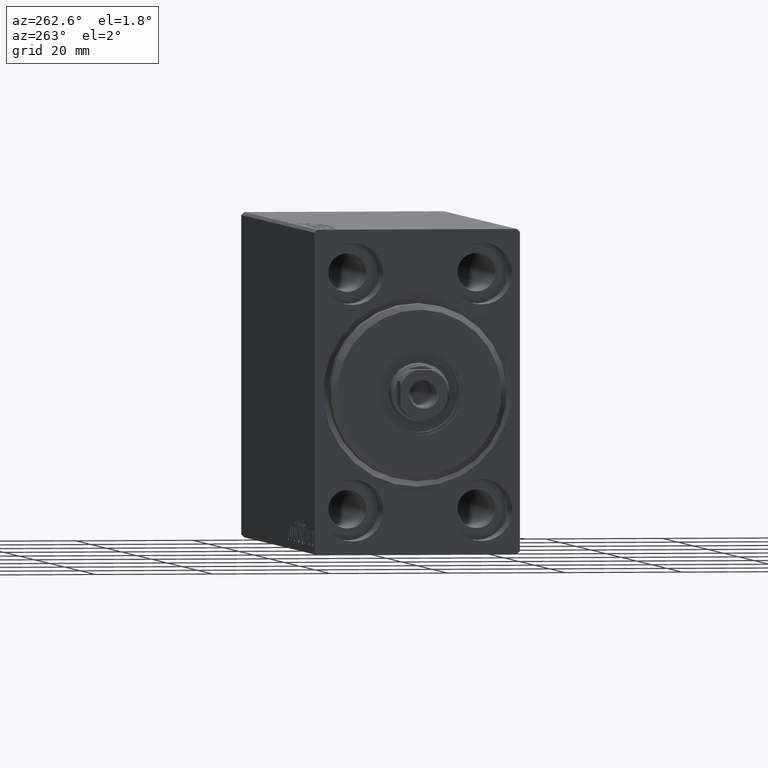
[diagram: clean part render]
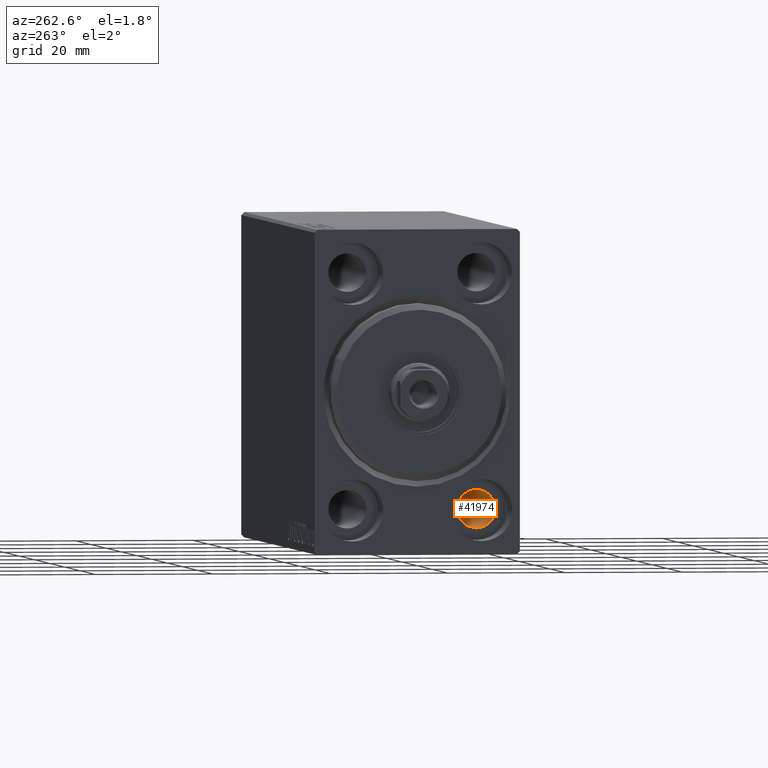
[diagram: same view with one face highlighted and labeled with its STEP entity id]
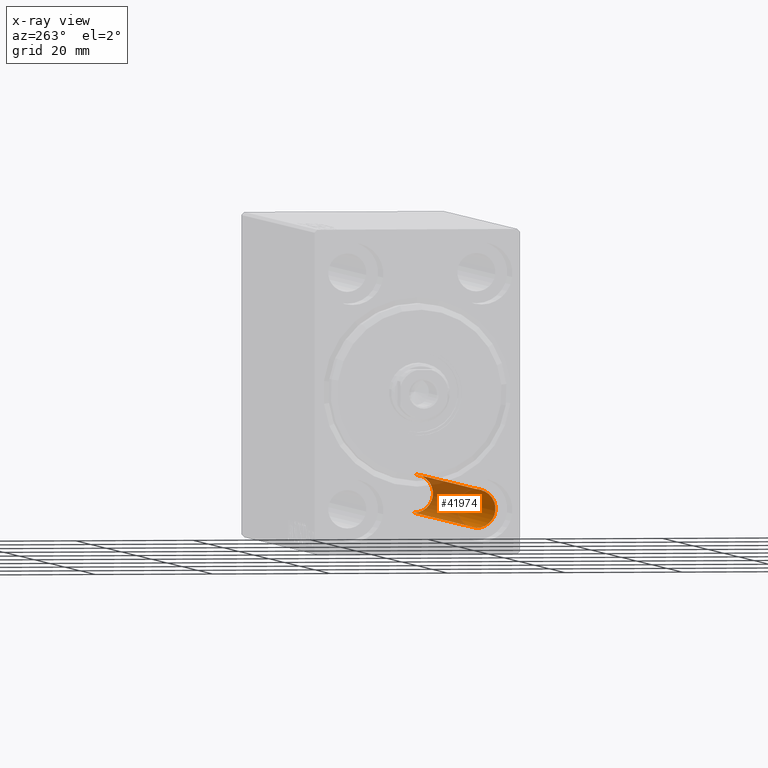
[diagram: x-ray of the same camera — body ghosted, the highlighted face saturated]
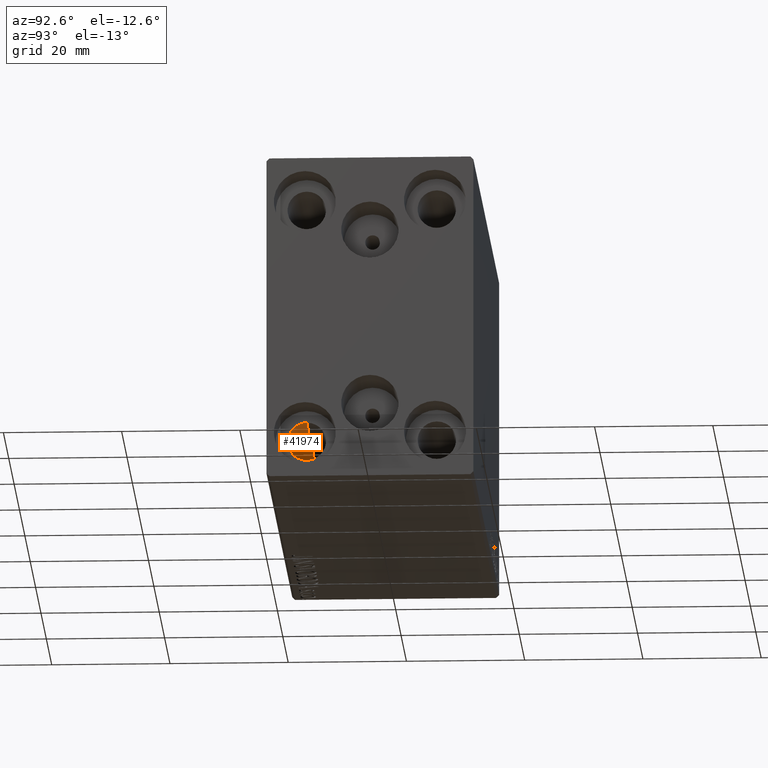
[diagram: same view with one face highlighted and labeled with its STEP entity id]
A machine part, auxiliary view. The second image highlights one B-rep face of the part: STEP entity #41974.
The next image is the same camera in x-ray: the body ghosted, the highlighted face saturated — about 53% of this face is hidden behind the body in this view.
A second angle (auxiliary view) of the same face is appended — the face is thin or edge-on in the first view.
In plain terms, the highlighted cylindrical surface (edge-blend (fillet) strip) has radius 3.25 mm, axis along (-1, -0, -0).
Its self-contained STEP definition (entity closure, byte-faithful):
#41 = VECTOR ( 'NONE', #42005, 1000.000000000000000 ) ;
#198 = LINE ( 'NONE', #39945, #33790 ) ;
#734 = EDGE_CURVE ( 'NONE', #19073, #11145, #4718, .T. ) ;
#3960 = VERTEX_POINT ( 'NONE', #38295 ) ;
#4718 = LINE ( 'NONE', #24899, #41 ) ;
#4857 = EDGE_CURVE ( 'NONE', #19073, #3960, #17114, .T. ) ;
#7310 = CARTESIAN_POINT ( 'NONE',  ( 89.00000000000000000, -11.00000000000000355, -23.25000000000000000 ) ) ;
#7547 = EDGE_CURVE ( 'NONE', #3960, #16487, #198, .T. ) ;
#11145 = VERTEX_POINT ( 'NONE', #14774 ) ;
#11491 = DIRECTION ( 'NONE',  ( -1.000000000000000000, -0.000000000000000000, -0.000000000000000000 ) ) ;
#12500 = CYLINDRICAL_SURFACE ( 'NONE', #28374, 3.249999999999999556 ) ;
#13094 = ORIENTED_EDGE ( 'NONE', *, *, #734, .T. ) ;
#14774 = CARTESIAN_POINT ( 'NONE',  ( 7.000000000000006217, -11.00000000000000355, -23.25000000000000000 ) ) ;
#16487 = VERTEX_POINT ( 'NONE', #21197 ) ;
#17114 = CIRCLE ( 'NONE', #34143, 3.249999999999999556 ) ;
#17640 = EDGE_LOOP ( 'NONE', ( #27500, #13094, #32945, #25846 ) ) ;
#19073 = VERTEX_POINT ( 'NONE', #7310 ) ;
#21197 = CARTESIAN_POINT ( 'NONE',  ( 7.000000000000006217, -11.00000000000000355, -16.75000000000000000 ) ) ;
#23161 = CARTESIAN_POINT ( 'NONE',  ( 96.00000000000000000, -11.00000000000000355, -20.00000000000000000 ) ) ;
#24899 = CARTESIAN_POINT ( 'NONE',  ( 96.00000000000000000, -11.00000000000000355, -23.25000000000000000 ) ) ;
#25025 = DIRECTION ( 'NONE',  ( 0.000000000000000000, 0.000000000000000000, -1.000000000000000000 ) ) ;
#25846 = ORIENTED_EDGE ( 'NONE', *, *, #7547, .F. ) ;
#26036 = DIRECTION ( 'NONE',  ( 0.000000000000000000, 0.000000000000000000, 1.000000000000000000 ) ) ;
#27500 = ORIENTED_EDGE ( 'NONE', *, *, #4857, .F. ) ;
#28374 = AXIS2_PLACEMENT_3D ( 'NONE', #23161, #43372, #26036 ) ;
#29069 = AXIS2_PLACEMENT_3D ( 'NONE', #43014, #36124, #29906 ) ;
#29372 = FACE_OUTER_BOUND ( 'NONE', #17640, .T. ) ;
#29906 = DIRECTION ( 'NONE',  ( 0.000000000000000000, 0.000000000000000000, 1.000000000000000000 ) ) ;
#31478 = CARTESIAN_POINT ( 'NONE',  ( 89.00000000000000000, -11.00000000000000355, -20.00000000000000000 ) ) ;
#32945 = ORIENTED_EDGE ( 'NONE', *, *, #42425, .T. ) ;
#33790 = VECTOR ( 'NONE', #37262, 1000.000000000000000 ) ;
#34143 = AXIS2_PLACEMENT_3D ( 'NONE', #31478, #11491, #25025 ) ;
#36124 = DIRECTION ( 'NONE',  ( -1.000000000000000000, 0.000000000000000000, 0.000000000000000000 ) ) ;
#37262 = DIRECTION ( 'NONE',  ( -1.000000000000000000, -0.000000000000000000, -0.000000000000000000 ) ) ;
#38295 = CARTESIAN_POINT ( 'NONE',  ( 89.00000000000000000, -11.00000000000000355, -16.75000000000000000 ) ) ;
#39945 = CARTESIAN_POINT ( 'NONE',  ( 96.00000000000000000, -11.00000000000000355, -16.75000000000000000 ) ) ;
#41157 = CIRCLE ( 'NONE', #29069, 3.249999999999999556 ) ;
#41974 = ADVANCED_FACE ( 'NONE', ( #29372 ), #12500, .F. ) ;
#42005 = DIRECTION ( 'NONE',  ( -1.000000000000000000, -0.000000000000000000, -0.000000000000000000 ) ) ;
#42425 = EDGE_CURVE ( 'NONE', #11145, #16487, #41157, .T. ) ;
#43014 = CARTESIAN_POINT ( 'NONE',  ( 7.000000000000006217, -11.00000000000000355, -20.00000000000000000 ) ) ;
#43372 = DIRECTION ( 'NONE',  ( -1.000000000000000000, -0.000000000000000000, -0.000000000000000000 ) ) ;